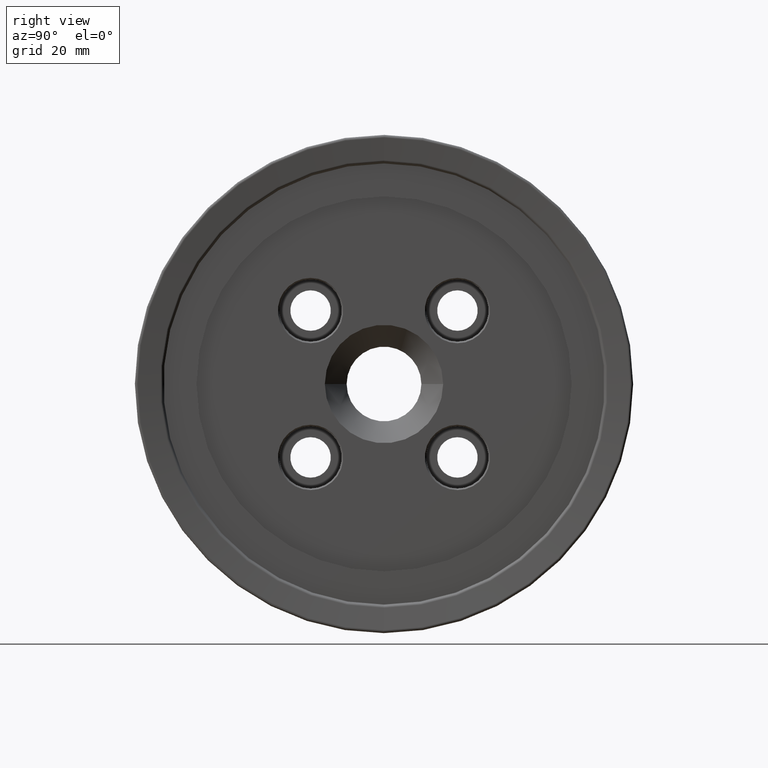
[diagram: clean part render]
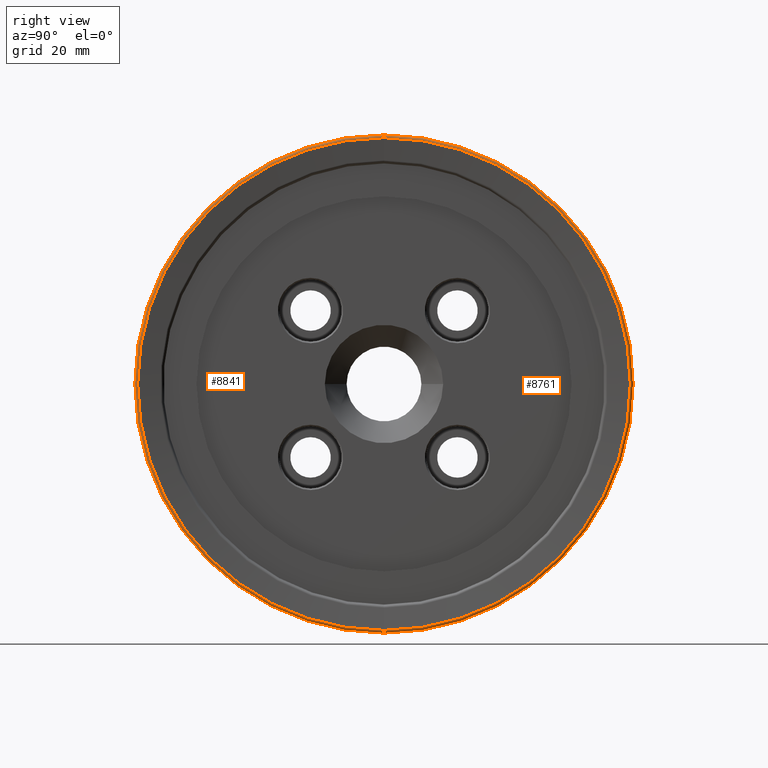
[diagram: same view with one multi-face feature highlighted, each face labeled with its STEP entity id]
A machine part, right view. The highlighted faces form ONE feature: a constant-radius fillet chain: 2 tangent blend faces with common blend radius 0.7988 mm. The faces share edges in the B-rep.
Their STEP definitions:
[1] entity #8761 (Torus):
#2437 = ORIENTED_EDGE ( 'NONE', *, *, #3355, .T. ) ;
#2438 = ORIENTED_EDGE ( 'NONE', *, *, #3372, .F. ) ;
#2448 = ORIENTED_EDGE ( 'NONE', *, *, #3357, .T. ) ;
#2607 = ORIENTED_EDGE ( 'NONE', *, *, #3349, .F. ) ;
#3349 = EDGE_CURVE ( 'NONE', #7742, #7799, #10404, .T. ) ;
#3355 = EDGE_CURVE ( 'NONE', #7749, #7845, #10409, .T. ) ;
#3357 = EDGE_CURVE ( 'NONE', #7742, #7749, #10411, .T. ) ;
#3372 = EDGE_CURVE ( 'NONE', #7799, #7845, #10433, .T. ) ;
#5241 = AXIS2_PLACEMENT_3D ( 'NONE', #13234, #13235, #13236 ) ;
#5244 = AXIS2_PLACEMENT_3D ( 'NONE', #13247, #13251, #13252 ) ;
#5245 = AXIS2_PLACEMENT_3D ( 'NONE', #13256, #13257, #13258 ) ;
#5251 = AXIS2_PLACEMENT_3D ( 'NONE', #13286, #13298, #13299 ) ;
#5381 = AXIS2_PLACEMENT_3D ( 'NONE', #15623, #15622, #15625 ) ;
#7742 = VERTEX_POINT ( 'NONE', #15322 ) ;
#7749 = VERTEX_POINT ( 'NONE', #15329 ) ;
#7799 = VERTEX_POINT ( 'NONE', #15379 ) ;
#7845 = VERTEX_POINT ( 'NONE', #15425 ) ;
#8761 = ADVANCED_FACE ( 'NONE', ( #11028 ), #11030, .T. ) ;
#10404 = CIRCLE ( 'NONE', #5241, 0.7987744941231333900 ) ;
#10409 = CIRCLE ( 'NONE', #5244, 0.7987744941231333900 ) ;
#10411 = CIRCLE ( 'NONE', #5245, 80.00000000000000000 ) ;
#10433 = CIRCLE ( 'NONE', #5251, 79.10402505509607400 ) ;
#11028 = FACE_OUTER_BOUND ( 'NONE', #11975, .T. ) ;
#11030 = TOROIDAL_SURFACE ( 'NONE', #5381, 79.20122550587686300, 0.7987744941231329500 ) ;
#11975 = EDGE_LOOP ( 'NONE', ( #2448, #2437, #2438, #2607 ) ) ;
#13234 = CARTESIAN_POINT ( 'NONE',  ( 0.9512255058768750400, 0.0000000000000000000, -79.20122550587686300 ) ) ;
#13235 = DIRECTION ( 'NONE',  ( -0.0000000000000000000, -1.000000000000000000, -0.0000000000000000000 ) ) ;
#13236 = DIRECTION ( 'NONE',  ( 0.0000000000000000000, 0.0000000000000000000, -1.000000000000000000 ) ) ;
#13247 = CARTESIAN_POINT ( 'NONE',  ( 0.9512255058768750400, 9.699352730431982200E-015, 79.20122550587686300 ) ) ;
#13251 = DIRECTION ( 'NONE',  ( 0.0000000000000000000, 1.000000000000000000, -1.224646799147353200E-016 ) ) ;
#13252 = DIRECTION ( 'NONE',  ( 0.0000000000000000000, 1.224646799147362100E-016, 1.000000000000000000 ) ) ;
#13256 = CARTESIAN_POINT ( 'NONE',  ( 0.9512255058768750400, 0.0000000000000000000, 0.0000000000000000000 ) ) ;
#13257 = DIRECTION ( 'NONE',  ( 1.000000000000000000, -0.0000000000000000000, -0.0000000000000000000 ) ) ;
#13258 = DIRECTION ( 'NONE',  ( 0.0000000000000000000, 0.0000000000000000000, -1.000000000000000000 ) ) ;
#13286 = CARTESIAN_POINT ( 'NONE',  ( 1.744063928778840900, 0.0000000000000000000, 0.0000000000000000000 ) ) ;
#13298 = DIRECTION ( 'NONE',  ( 1.000000000000000000, -0.0000000000000000000, -0.0000000000000000000 ) ) ;
#13299 = DIRECTION ( 'NONE',  ( 0.0000000000000000000, 0.0000000000000000000, -1.000000000000000000 ) ) ;
#15322 = CARTESIAN_POINT ( 'NONE',  ( 0.9512255058768750400, 0.0000000000000000000, -80.00000000000000000 ) ) ;
#15329 = CARTESIAN_POINT ( 'NONE',  ( 0.9512255058768750400, 9.797174393178826100E-015, 80.00000000000000000 ) ) ;
#15379 = CARTESIAN_POINT ( 'NONE',  ( 1.744063928778840900, 0.0000000000000000000, -79.10402505509607400 ) ) ;
#15425 = CARTESIAN_POINT ( 'NONE',  ( 1.744063928778840900, 9.742311750759185600E-015, 79.10402505509607400 ) ) ;
#15622 = DIRECTION ( 'NONE',  ( 1.000000000000000000, -0.0000000000000000000, -0.0000000000000000000 ) ) ;
#15623 = CARTESIAN_POINT ( 'NONE',  ( 0.9512255058768750400, 0.0000000000000000000, 0.0000000000000000000 ) ) ;
#15625 = DIRECTION ( 'NONE',  ( 0.0000000000000000000, 0.0000000000000000000, -1.000000000000000000 ) ) ;
[2] entity #8841 (Torus):
#2969 = EDGE_LOOP ( 'NONE', ( #18744, #18832, #18725, #18739 ) ) ;
#3349 = EDGE_CURVE ( 'NONE', #7742, #7799, #10404, .T. ) ;
#3355 = EDGE_CURVE ( 'NONE', #7749, #7845, #10409, .T. ) ;
#3366 = EDGE_CURVE ( 'NONE', #7845, #7799, #10425, .T. ) ;
#3973 = EDGE_CURVE ( 'NONE', #7749, #7742, #10583, .T. ) ;
#5241 = AXIS2_PLACEMENT_3D ( 'NONE', #13234, #13235, #13236 ) ;
#5244 = AXIS2_PLACEMENT_3D ( 'NONE', #13247, #13251, #13252 ) ;
#5253 = AXIS2_PLACEMENT_3D ( 'NONE', #13274, #13282, #13283 ) ;
#5322 = AXIS2_PLACEMENT_3D ( 'NONE', #13798, #13807, #13808 ) ;
#5388 = AXIS2_PLACEMENT_3D ( 'NONE', #15869, #15872, #15878 ) ;
#7742 = VERTEX_POINT ( 'NONE', #15322 ) ;
#7749 = VERTEX_POINT ( 'NONE', #15329 ) ;
#7799 = VERTEX_POINT ( 'NONE', #15379 ) ;
#7845 = VERTEX_POINT ( 'NONE', #15425 ) ;
#8841 = ADVANCED_FACE ( 'NONE', ( #11176 ), #11163, .T. ) ;
#10404 = CIRCLE ( 'NONE', #5241, 0.7987744941231333900 ) ;
#10409 = CIRCLE ( 'NONE', #5244, 0.7987744941231333900 ) ;
#10425 = CIRCLE ( 'NONE', #5253, 79.10402505509607400 ) ;
#10583 = CIRCLE ( 'NONE', #5322, 80.00000000000000000 ) ;
#11163 = TOROIDAL_SURFACE ( 'NONE', #5388, 79.20122550587686300, 0.7987744941231329500 ) ;
#11176 = FACE_OUTER_BOUND ( 'NONE', #2969, .T. ) ;
#13234 = CARTESIAN_POINT ( 'NONE',  ( 0.9512255058768750400, 0.0000000000000000000, -79.20122550587686300 ) ) ;
#13235 = DIRECTION ( 'NONE',  ( -0.0000000000000000000, -1.000000000000000000, -0.0000000000000000000 ) ) ;
#13236 = DIRECTION ( 'NONE',  ( 0.0000000000000000000, 0.0000000000000000000, -1.000000000000000000 ) ) ;
#13247 = CARTESIAN_POINT ( 'NONE',  ( 0.9512255058768750400, 9.699352730431982200E-015, 79.20122550587686300 ) ) ;
#13251 = DIRECTION ( 'NONE',  ( 0.0000000000000000000, 1.000000000000000000, -1.224646799147353200E-016 ) ) ;
#13252 = DIRECTION ( 'NONE',  ( 0.0000000000000000000, 1.224646799147362100E-016, 1.000000000000000000 ) ) ;
#13274 = CARTESIAN_POINT ( 'NONE',  ( 1.744063928778840900, 0.0000000000000000000, 0.0000000000000000000 ) ) ;
#13282 = DIRECTION ( 'NONE',  ( 1.000000000000000000, -0.0000000000000000000, -0.0000000000000000000 ) ) ;
#13283 = DIRECTION ( 'NONE',  ( 0.0000000000000000000, 0.0000000000000000000, -1.000000000000000000 ) ) ;
#13798 = CARTESIAN_POINT ( 'NONE',  ( 0.9512255058768750400, 0.0000000000000000000, 0.0000000000000000000 ) ) ;
#13807 = DIRECTION ( 'NONE',  ( 1.000000000000000000, -0.0000000000000000000, -0.0000000000000000000 ) ) ;
#13808 = DIRECTION ( 'NONE',  ( 0.0000000000000000000, 0.0000000000000000000, -1.000000000000000000 ) ) ;
#15322 = CARTESIAN_POINT ( 'NONE',  ( 0.9512255058768750400, 0.0000000000000000000, -80.00000000000000000 ) ) ;
#15329 = CARTESIAN_POINT ( 'NONE',  ( 0.9512255058768750400, 9.797174393178826100E-015, 80.00000000000000000 ) ) ;
#15379 = CARTESIAN_POINT ( 'NONE',  ( 1.744063928778840900, 0.0000000000000000000, -79.10402505509607400 ) ) ;
#15425 = CARTESIAN_POINT ( 'NONE',  ( 1.744063928778840900, 9.742311750759185600E-015, 79.10402505509607400 ) ) ;
#15869 = CARTESIAN_POINT ( 'NONE',  ( 0.9512255058768750400, 0.0000000000000000000, 0.0000000000000000000 ) ) ;
#15872 = DIRECTION ( 'NONE',  ( 1.000000000000000000, -0.0000000000000000000, -0.0000000000000000000 ) ) ;
#15878 = DIRECTION ( 'NONE',  ( 0.0000000000000000000, 0.0000000000000000000, -1.000000000000000000 ) ) ;
#18725 = ORIENTED_EDGE ( 'NONE', *, *, #3349, .T. ) ;
#18739 = ORIENTED_EDGE ( 'NONE', *, *, #3366, .F. ) ;
#18744 = ORIENTED_EDGE ( 'NONE', *, *, #3355, .F. ) ;
#18832 = ORIENTED_EDGE ( 'NONE', *, *, #3973, .T. ) ;